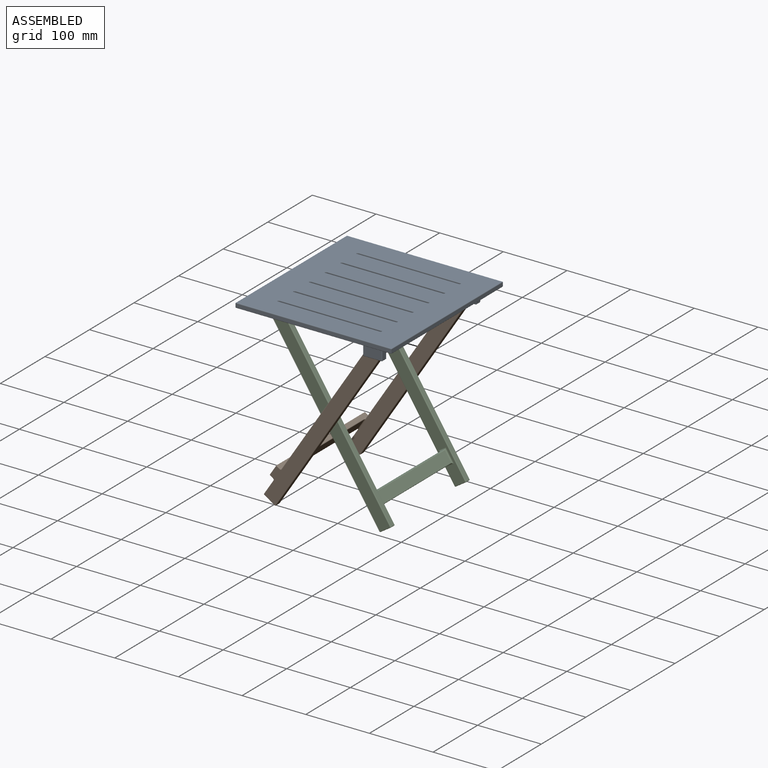
[diagram: assembled view]
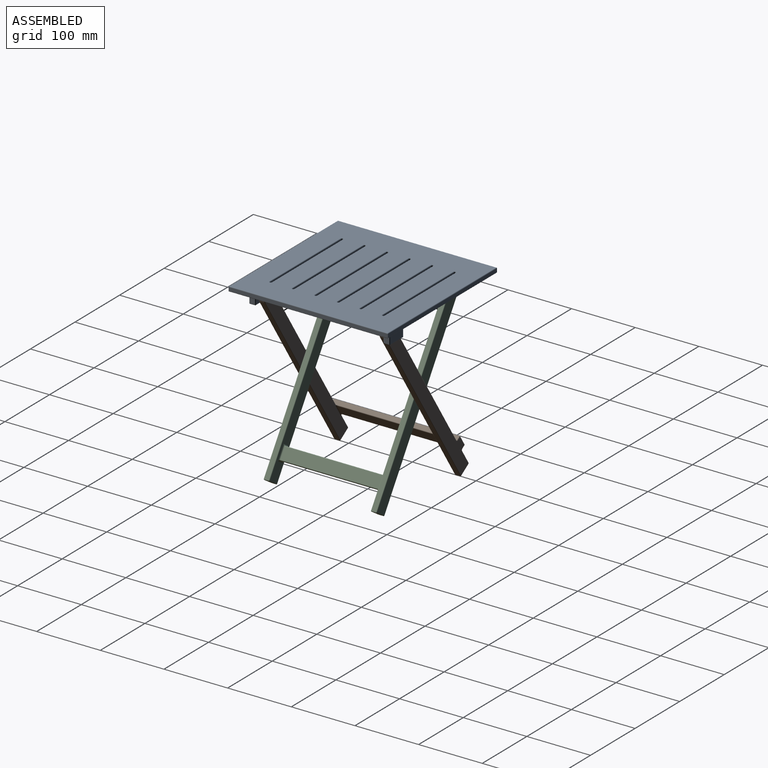
[diagram: assembled view, second angle]
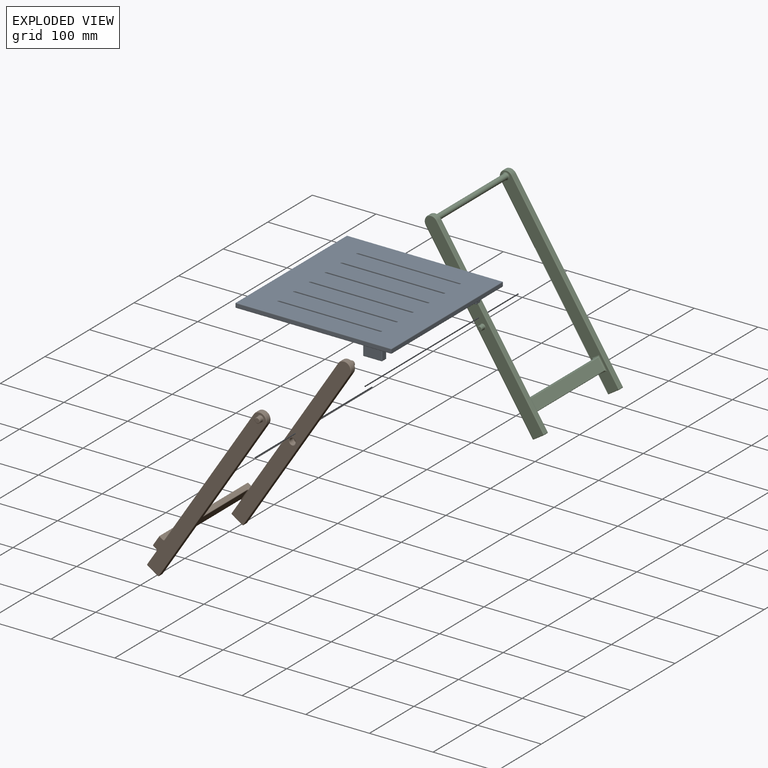
[diagram: exploded view]
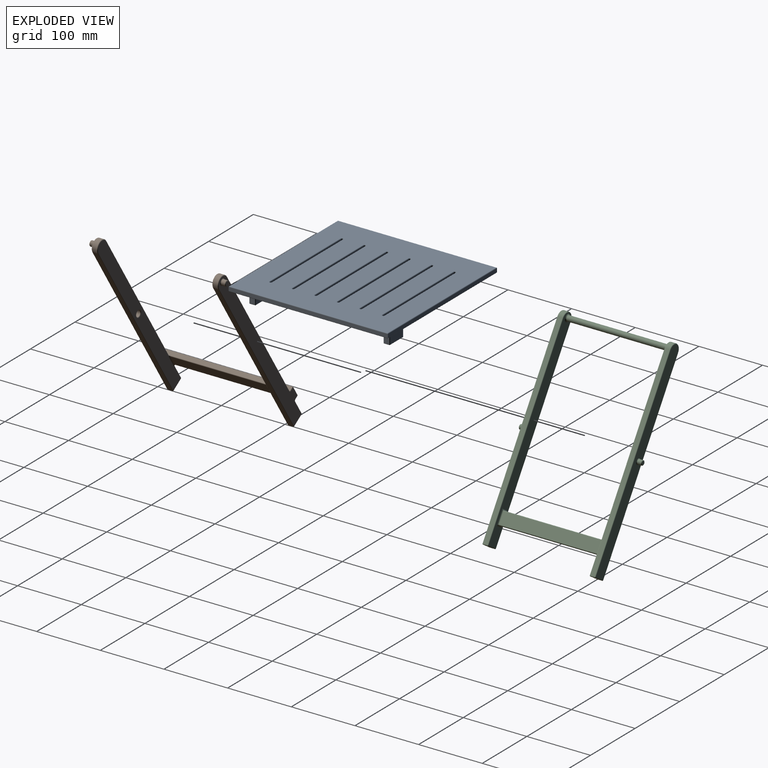
[diagram: exploded view, second angle]
ASSEMBLY  parts=3 mates=2
PART A: 215 faces, bbox 245x250x30.5 mm
  f0: plane 8x4mm, normal (1,0,0), area 32mm2, adj f93,f94,f98,f99
  f1: plane 8x1.5mm, normal (1,0,0), area 12mm2, adj f62,f68,f111,f132
  f2: plane 28x20mm, normal (0,-1,0), area 311.2mm2, adj f72,f91,f95,f99,f101,f102,f103,f105
  f3: plane 28x20mm, normal (0,1,0), area 311.2mm2, adj f69,f112,f119,f125,f128,f129,f130,f132
  f4: plane 28x20mm, normal (0,-1,0), area 311.2mm2, adj f66,f107,f111,f114,f115,f118,f121,f122
  f5: plane 248x243mm, normal (0,0,-1), area 53442.2mm2, adj f66,f67,f68,f69,f70,f71,f72,f73
  f6: plane 250x5.5mm, normal (1,0,0), area 1375mm2, adj f9,f10,f210,f211
  f7: plane 248x243mm, normal (0,0,1), area 55346.2mm2, adj f163,f164,f165,f166,f171,f172,f173,f174
  f8: plane 250x5.5mm, normal (-1,0,0), area 1375mm2, adj f9,f10,f207,f214
  f9: plane 245x5.5mm, normal (0,-1,0), area 1347.5mm2, adj f6,f8,f208,f212
  f10: plane 245x5.5mm, normal (0,1,0), area 1347.5mm2, adj f6,f8,f209,f213
  f11: cylinder r=1.5mm len=5.5mm, axis (0,0,1), area 25.9mm2, adj f12,f14,f160,f164
  f12: plane 160x5.5mm, normal (0,1,0), area 880mm2, adj f11,f13,f159,f166
  f13: cylinder r=1.5mm len=5.5mm, axis (0,0,1), area 25.9mm2, adj f12,f14,f161,f165
  f14: plane 160x5.5mm, normal (0,-1,0), area 880mm2, adj f11,f13,f162,f163
  f15: cylinder r=1.5mm len=5.5mm, axis (0,0,1), area 25.9mm2, adj f16,f18,f168,f172
  f16: plane 160x5.5mm, normal (0,1,0), area 880mm2, adj f15,f17,f167,f174
  f17: cylinder r=1.5mm len=5.5mm, axis (0,0,1), area 25.9mm2, adj f16,f18,f169,f173
  f18: plane 160x5.5mm, normal (0,-1,0), area 880mm2, adj f15,f17,f170,f171
  f19: cylinder r=1.5mm len=5.5mm, axis (0,0,1), area 25.9mm2, adj f20,f22,f176,f180
  f20: plane 160x5.5mm, normal (0,1,0), area 880mm2, adj f19,f21,f175,f182
  f21: cylinder r=1.5mm len=5.5mm, axis (0,0,1), area 25.9mm2, adj f20,f22,f177,f181
  f22: plane 160x5.5mm, normal (0,-1,0), area 880mm2, adj f19,f21,f178,f179
  f23: cylinder r=1.5mm len=5.5mm, axis (0,0,1), area 25.9mm2, adj f24,f25,f184,f190
  f24: plane 160x5.5mm, normal (0,-1,0), area 880mm2, adj f23,f26,f186,f188
  f25: plane 160x5.5mm, normal (0,1,0), area 880mm2, adj f23,f26,f183,f189
  f26: cylinder r=1.5mm len=5.5mm, axis (0,0,1), area 25.9mm2, adj f24,f25,f185,f187
  f27: cylinder r=1.5mm len=5.5mm, axis (0,0,1), area 25.9mm2, adj f28,f30,f192,f195
  f28: plane 160x5.5mm, normal (0,1,0), area 880mm2, adj f27,f29,f191,f196
  f29: cylinder r=1.5mm len=5.5mm, axis (0,0,1), area 25.9mm2, adj f28,f30,f193,f198
  f30: plane 160x5.5mm, normal (0,-1,0), area 880mm2, adj f27,f29,f194,f197
  f31: cylinder r=1.5mm len=5.5mm, axis (0,0,1), area 25.9mm2, adj f32,f34,f200,f204
  f32: plane 160x5.5mm, normal (0,1,0), area 880mm2, adj f31,f33,f199,f206
  f33: cylinder r=1.5mm len=5.5mm, axis (0,0,1), area 25.9mm2, adj f32,f34,f201,f205
  f34: plane 160x5.5mm, normal (0,-1,0), area 880mm2, adj f31,f33,f202,f203
  f35: plane 20x9mm, normal (-1,0,0), area 180mm2, adj f36,f79,f155,f158
  f36: plane 29x20mm, normal (0,1,0), area 476.1mm2, adj f35,f56,f81,f148,f153
  f37: plane 20x8mm, normal (1,0,0), area 160mm2, adj f80,f148,f149,f150
  f38: plane 28x20mm, normal (0,-1,0), area 560mm2, adj f78,f149,f154,f158
  f39: plane 28x8mm, normal (0,0,-1), area 224mm2, adj f150,f153,f154,f155
  f40: plane 28x20mm, normal (0,-1,0), area 456.1mm2, adj f57,f74,f136,f141,f145
  f41: plane 20x9mm, normal (-1,0,0), area 180mm2, adj f42,f75,f142,f145
  f42: plane 29x20mm, normal (0,1,0), area 580mm2, adj f41,f77,f135,f140
  f43: plane 20x8mm, normal (1,0,0), area 160mm2, adj f76,f135,f136,f137
  f44: plane 28x8mm, normal (0,0,-1), area 224mm2, adj f137,f140,f141,f142
  f45: plane 21x8mm, normal (-1,0,0), area 168mm2, adj f48,f73,f85,f91
  f46: plane 28x20mm, normal (0,1,0), area 311.2mm2, adj f71,f84,f85,f86,f87,f89,f92,f93
  f47: plane 8x1.5mm, normal (1,0,0), area 12mm2, adj f63,f70,f84,f105
  f48: plane 29x8mm, normal (0,0,-1), area 232mm2, adj f45,f87,f94,f95
  f49: plane 20x8mm, normal (-1,0,0), area 160mm2, adj f67,f107,f112,f113
  f50: plane 8x4mm, normal (1,0,0), area 32mm2, adj f120,f121,f125,f126
  f51: plane 28x8mm, normal (0,0,-1), area 224mm2, adj f113,f114,f119,f120
  f52: cylinder r=4.75mm len=9.5mm, axis (0,1,0), area 194mm2, adj f57,f58
  f53: plane 7.5x7.5mm, normal (0,-1,0), area 44.2mm2, adj f58
  f54: cylinder r=4.75mm len=9.5mm, axis (0,1,0), area 194mm2, adj f56,f59
  f55: plane 7.5x7.5mm, normal (0,1,0), area 44.2mm2, adj f59
  f56: torus R=5.75mm, axis (0,-1,0), area 50.5mm2, adj f36,f54
  f57: torus R=5.75mm, axis (0,-1,0), area 50.5mm2, adj f40,f52
  f58: torus R=3.75mm, axis (0,-1,0), area 43.3mm2, adj f52,f53
  f59: torus R=3.75mm, axis (0,1,0), area 43.3mm2, adj f54,f55
  f60: cylinder r=5mm len=9.88mm, axis (0,1,0), area 116.8mm2, adj f61,f62,f118,f129
  f61: plane 14x8mm, normal (0,0,1), area 112mm2, adj f60,f122,f126,f128
  f62: plane 16.1x8mm, normal (0.22,0,-0.98), area 132mm2, adj f1,f60,f115,f130
  f63: plane 16.1x8mm, normal (0.22,0,-0.98), area 132mm2, adj f47,f65,f86,f103
  f64: plane 14x8mm, normal (0,0,1), area 112mm2, adj f65,f92,f98,f101
  f65: cylinder r=5mm len=9.88mm, axis (0,1,0), area 116.8mm2, adj f63,f64,f89,f102
  f66: cylinder r=2mm len=34mm, axis (-1,0,0), area 94.8mm2, adj f4,f5,f106,f108
  f67: cylinder r=2mm len=14mm, axis (0,1,0), area 32mm2, adj f5,f49,f106,f109
  f68: cylinder r=2mm len=14mm, axis (0,-1,0), area 32mm2, adj f1,f5,f108,f131
  f69: cylinder r=2mm len=34mm, axis (1,0,0), area 94.8mm2, adj f3,f5,f109,f131
  f70: cylinder r=2mm len=14mm, axis (0,-1,0), area 32mm2, adj f5,f47,f82,f104
  f71: cylinder r=2mm len=34mm, axis (1,0,0), area 94.8mm2, adj f5,f46,f82,f83
  f72: cylinder r=2mm len=34mm, axis (-1,0,0), area 94.8mm2, adj f2,f5,f88,f104
  f73: cylinder r=2mm len=14mm, axis (0,1,0), area 32mm2, adj f5,f45,f83,f88
  f74: cylinder r=2mm len=34mm, axis (-1,0,0), area 94.8mm2, adj f5,f40,f134,f144
  f75: cylinder r=2mm len=14mm, axis (0,1,0), area 34mm2, adj f5,f41,f77,f144
  f76: cylinder r=2mm len=14mm, axis (0,-1,0), area 32mm2, adj f5,f43,f133,f134
  f77: cylinder r=2mm len=34mm, axis (1,0,0), area 96.8mm2, adj f5,f42,f75,f133
  f78: cylinder r=2mm len=34mm, axis (-1,0,0), area 94.8mm2, adj f5,f38,f147,f157
  f79: cylinder r=2mm len=14mm, axis (0,1,0), area 34mm2, adj f5,f35,f81,f157
  f80: cylinder r=2mm len=14mm, axis (0,-1,0), area 32mm2, adj f5,f37,f146,f147
  f81: cylinder r=2mm len=34mm, axis (1,0,0), area 96.8mm2, adj f5,f36,f79,f146
  f82: bspline ~3x3mm, area 3.6mm2, adj f70,f71,f84
  f83: bspline ~3x3mm, area 3.6mm2, adj f71,f73,f85
  f84: cylinder r=1mm len=1.5mm, axis (0,0,1), area 1.9mm2, adj f46,f47,f82,f86
  f85: cylinder r=1mm len=21mm, axis (0,0,-1), area 32.4mm2, adj f45,f46,f83,f87
  f86: cylinder r=1mm len=16.32mm, axis (0.98,0,0.22), area 25.5mm2, adj f46,f63,f84,f89
  f87: cylinder r=1mm len=29mm, axis (-1,0,0), area 45mm2, adj f46,f48,f85,f90
  f88: bspline ~3x3mm, area 3.6mm2, adj f72,f73,f91
  f89: torus R=6mm, axis (0,-1,0), area 24.6mm2, adj f46,f65,f86,f92
  f90: sphere r=1mm, area 1.6mm2, adj f87,f93,f94
  f91: cylinder r=1mm len=21mm, axis (0,0,1), area 32.4mm2, adj f2,f45,f88,f95
  f92: cylinder r=1mm len=14mm, axis (-1,0,0), area 22mm2, adj f46,f64,f89,f96
  f93: cylinder r=1mm len=4mm, axis (0,0,1), area 6.3mm2, adj f0,f46,f90,f96
  f94: cylinder r=1mm len=8mm, axis (0,1,0), area 12.6mm2, adj f0,f48,f90,f97
  f95: cylinder r=1mm len=29mm, axis (1,0,0), area 45mm2, adj f2,f48,f91,f97
  f96: sphere r=1mm, area 1.6mm2, adj f92,f93,f98
  f97: sphere r=1mm, area 1.6mm2, adj f94,f95,f99
  f98: cylinder r=1mm len=8mm, axis (0,1,0), area 12.6mm2, adj f0,f64,f96,f100
  f99: cylinder r=1mm len=4mm, axis (0,0,-1), area 6.3mm2, adj f0,f2,f97,f100
  f100: sphere r=1mm, area 1.6mm2, adj f98,f99,f101
  f101: cylinder r=1mm len=14mm, axis (-1,0,0), area 22mm2, adj f2,f64,f100,f102
  f102: torus R=6mm, axis (0,-1,0), area 24.6mm2, adj f2,f65,f101,f103
  f103: cylinder r=1mm len=16.32mm, axis (0.98,0,0.22), area 25.5mm2, adj f2,f63,f102,f105
  f104: bspline ~3x3mm, area 3.6mm2, adj f70,f72,f105
  f105: cylinder r=1mm len=1.5mm, axis (0,0,-1), area 1.9mm2, adj f2,f47,f103,f104
  f106: bspline ~3x3mm, area 3.6mm2, adj f66,f67,f107
  f107: cylinder r=1mm len=20mm, axis (0,0,-1), area 31.4mm2, adj f4,f49,f106,f110
  f108: bspline ~3x3mm, area 3.6mm2, adj f66,f68,f111
  f109: bspline ~3x3mm, area 3.6mm2, adj f67,f69,f112
  f110: sphere r=1mm, area 1.6mm2, adj f107,f113,f114
  f111: cylinder r=1mm len=1.5mm, axis (0,0,1), area 1.9mm2, adj f1,f4,f108,f115
  f112: cylinder r=1mm len=20mm, axis (0,0,1), area 31.4mm2, adj f3,f49,f109,f116
  f113: cylinder r=1mm len=8mm, axis (0,-1,0), area 12.6mm2, adj f49,f51,f110,f116
  f114: cylinder r=1mm len=28mm, axis (1,0,0), area 44mm2, adj f4,f51,f110,f117
  f115: cylinder r=1mm len=16.32mm, axis (0.98,0,0.22), area 25.5mm2, adj f4,f62,f111,f118
  f116: sphere r=1mm, area 1.6mm2, adj f112,f113,f119
  f117: sphere r=1mm, area 1.6mm2, adj f114,f120,f121
  f118: torus R=6mm, axis (0,-1,0), area 24.6mm2, adj f4,f60,f115,f122
  f119: cylinder r=1mm len=28mm, axis (-1,0,0), area 44mm2, adj f3,f51,f116,f123
  f120: cylinder r=1mm len=8mm, axis (0,1,0), area 12.6mm2, adj f50,f51,f117,f123
  f121: cylinder r=1mm len=4mm, axis (0,0,1), area 6.3mm2, adj f4,f50,f117,f124
  f122: cylinder r=1mm len=14mm, axis (-1,0,0), area 22mm2, adj f4,f61,f118,f124
  f123: sphere r=1mm, area 1.6mm2, adj f119,f120,f125
  f124: sphere r=1mm, area 1.6mm2, adj f121,f122,f126
  f125: cylinder r=1mm len=4mm, axis (0,0,-1), area 6.3mm2, adj f3,f50,f123,f127
  f126: cylinder r=1mm len=8mm, axis (0,-1,0), area 12.6mm2, adj f50,f61,f124,f127
  f127: sphere r=1mm, area 1.6mm2, adj f125,f126,f128
  f128: cylinder r=1mm len=14mm, axis (1,0,0), area 22mm2, adj f3,f61,f127,f129
  f129: torus R=6mm, axis (0,-1,0), area 24.6mm2, adj f3,f60,f128,f130
  f130: cylinder r=1mm len=16.32mm, axis (-0.98,0,-0.22), area 25.5mm2, adj f3,f62,f129,f132
  f131: bspline ~3x3mm, area 3.6mm2, adj f68,f69,f132
  f132: cylinder r=1mm len=1.5mm, axis (0,0,-1), area 1.9mm2, adj f1,f3,f130,f131
  f133: bspline ~3x3mm, area 3.6mm2, adj f76,f77,f135
  f134: bspline ~3x3mm, area 3.6mm2, adj f74,f76,f136
  f135: cylinder r=1mm len=20mm, axis (0,0,1), area 31.4mm2, adj f42,f43,f133,f138
  f136: cylinder r=1mm len=20mm, axis (0,0,-1), area 31.4mm2, adj f40,f43,f134,f139
  f137: cylinder r=1mm len=8mm, axis (0,1,0), area 12.6mm2, adj f43,f44,f138,f139
  f138: sphere r=1mm, area 1.6mm2, adj f135,f137,f140
  f139: sphere r=1mm, area 1.6mm2, adj f136,f137,f141
  f140: cylinder r=1mm len=29mm, axis (-1,0,0), area 45mm2, adj f42,f44,f138,f142
  f141: cylinder r=1mm len=28mm, axis (1,0,0), area 44mm2, adj f40,f44,f139,f143
  f142: cylinder r=1mm len=9mm, axis (0,-1,0), area 13.6mm2, adj f41,f44,f140,f143
  f143: sphere r=1mm, area 1.6mm2, adj f141,f142,f145
  f144: bspline ~3x3mm, area 3.6mm2, adj f74,f75,f145
  f145: cylinder r=1mm len=20mm, axis (0,0,1), area 31.4mm2, adj f40,f41,f143,f144
  f146: bspline ~3x3mm, area 3.6mm2, adj f80,f81,f148
  f147: bspline ~3x3mm, area 3.6mm2, adj f78,f80,f149
  f148: cylinder r=1mm len=20mm, axis (0,0,-1), area 31.4mm2, adj f36,f37,f146,f151
  f149: cylinder r=1mm len=20mm, axis (0,0,1), area 31.4mm2, adj f37,f38,f147,f152
  f150: cylinder r=1mm len=8mm, axis (0,1,0), area 12.6mm2, adj f37,f39,f151,f152
  f151: sphere r=1mm, area 1.6mm2, adj f148,f150,f153
  f152: sphere r=1mm, area 1.6mm2, adj f149,f150,f154
  f153: cylinder r=1mm len=29mm, axis (-1,0,0), area 45mm2, adj f36,f39,f151,f155
  f154: cylinder r=1mm len=28mm, axis (1,0,0), area 44mm2, adj f38,f39,f152,f156
  f155: cylinder r=1mm len=9mm, axis (0,-1,0), area 13.6mm2, adj f35,f39,f153,f156
  f156: sphere r=1mm, area 1.6mm2, adj f154,f155,f158
  f157: bspline ~3x3mm, area 3.6mm2, adj f78,f79,f158
  f158: cylinder r=1mm len=20mm, axis (0,0,-1), area 31.4mm2, adj f35,f38,f156,f157
  f159: cylinder r=1mm len=160mm, axis (-1,0,0), area 251.3mm2, adj f5,f12,f160,f161
  f160: torus R=2.5mm, axis (0,0,-1), area 9.2mm2, adj f5,f11,f159,f162
  f161: torus R=2.5mm, axis (0,0,-1), area 9.2mm2, adj f5,f13,f159,f162
  f162: cylinder r=1mm len=160mm, axis (1,0,0), area 251.3mm2, adj f5,f14,f160,f161
  f163: cylinder r=1mm len=160mm, axis (-1,0,0), area 251.3mm2, adj f7,f14,f164,f165
  f164: torus R=2.5mm, axis (0,0,-1), area 9.2mm2, adj f7,f11,f163,f166
  f165: torus R=2.5mm, axis (0,0,-1), area 9.2mm2, adj f7,f13,f163,f166
  f166: cylinder r=1mm len=160mm, axis (1,0,0), area 251.3mm2, adj f7,f12,f164,f165
  f167: cylinder r=1mm len=160mm, axis (-1,0,0), area 251.3mm2, adj f5,f16,f168,f169
  f168: torus R=2.5mm, axis (0,0,-1), area 9.2mm2, adj f5,f15,f167,f170
  f169: torus R=2.5mm, axis (0,0,-1), area 9.2mm2, adj f5,f17,f167,f170
  f170: cylinder r=1mm len=160mm, axis (1,0,0), area 251.3mm2, adj f5,f18,f168,f169
  f171: cylinder r=1mm len=160mm, axis (-1,0,0), area 251.3mm2, adj f7,f18,f172,f173
  f172: torus R=2.5mm, axis (0,0,-1), area 9.2mm2, adj f7,f15,f171,f174
  f173: torus R=2.5mm, axis (0,0,-1), area 9.2mm2, adj f7,f17,f171,f174
  f174: cylinder r=1mm len=160mm, axis (1,0,0), area 251.3mm2, adj f7,f16,f172,f173
  f175: cylinder r=1mm len=160mm, axis (-1,0,0), area 251.3mm2, adj f5,f20,f176,f177
  f176: torus R=2.5mm, axis (0,0,-1), area 9.2mm2, adj f5,f19,f175,f178
  f177: torus R=2.5mm, axis (0,0,-1), area 9.2mm2, adj f5,f21,f175,f178
  f178: cylinder r=1mm len=160mm, axis (1,0,0), area 251.3mm2, adj f5,f22,f176,f177
  f179: cylinder r=1mm len=160mm, axis (-1,0,0), area 251.3mm2, adj f7,f22,f180,f181
  f180: torus R=2.5mm, axis (0,0,-1), area 9.2mm2, adj f7,f19,f179,f182
  f181: torus R=2.5mm, axis (0,0,-1), area 9.2mm2, adj f7,f21,f179,f182
  f182: cylinder r=1mm len=160mm, axis (1,0,0), area 251.3mm2, adj f7,f20,f180,f181
  f183: cylinder r=1mm len=160mm, axis (-1,0,0), area 251.3mm2, adj f5,f25,f184,f185
  f184: torus R=2.5mm, axis (0,0,-1), area 9.2mm2, adj f5,f23,f183,f186
  f185: torus R=2.5mm, axis (0,0,-1), area 9.2mm2, adj f5,f26,f183,f186
  f186: cylinder r=1mm len=160mm, axis (1,0,0), area 251.3mm2, adj f5,f24,f184,f185
  f187: torus R=2.5mm, axis (0,0,-1), area 9.2mm2, adj f7,f26,f188,f189
  f188: cylinder r=1mm len=160mm, axis (-1,0,0), area 251.3mm2, adj f7,f24,f187,f190
  f189: cylinder r=1mm len=160mm, axis (1,0,0), area 251.3mm2, adj f7,f25,f187,f190
  f190: torus R=2.5mm, axis (0,0,-1), area 9.2mm2, adj f7,f23,f188,f189
  f191: cylinder r=1mm len=160mm, axis (-1,0,0), area 251.3mm2, adj f5,f28,f192,f193
  f192: torus R=2.5mm, axis (0,0,-1), area 9.2mm2, adj f5,f27,f191,f194
  f193: torus R=2.5mm, axis (0,0,-1), area 9.2mm2, adj f5,f29,f191,f194
  f194: cylinder r=1mm len=160mm, axis (1,0,0), area 251.3mm2, adj f5,f30,f192,f193
  f195: torus R=2.5mm, axis (0,0,-1), area 9.2mm2, adj f7,f27,f196,f197
  f196: cylinder r=1mm len=160mm, axis (1,0,0), area 251.3mm2, adj f7,f28,f195,f198
  f197: cylinder r=1mm len=160mm, axis (-1,0,0), area 251.3mm2, adj f7,f30,f195,f198
  f198: torus R=2.5mm, axis (0,0,-1), area 9.2mm2, adj f7,f29,f196,f197
  f199: cylinder r=1mm len=160mm, axis (-1,0,0), area 251.3mm2, adj f5,f32,f200,f201
  f200: torus R=2.5mm, axis (0,0,-1), area 9.2mm2, adj f5,f31,f199,f202
  f201: torus R=2.5mm, axis (0,0,-1), area 9.2mm2, adj f5,f33,f199,f202
  f202: cylinder r=1mm len=160mm, axis (1,0,0), area 251.3mm2, adj f5,f34,f200,f201
  f203: cylinder r=1mm len=160mm, axis (-1,0,0), area 251.3mm2, adj f7,f34,f204,f205
  f204: torus R=2.5mm, axis (0,0,-1), area 9.2mm2, adj f7,f31,f203,f206
  f205: torus R=2.5mm, axis (0,0,-1), area 9.2mm2, adj f7,f33,f203,f206
  f206: cylinder r=1mm len=160mm, axis (1,0,0), area 251.3mm2, adj f7,f32,f204,f205
  f207: cylinder r=1mm len=250mm, axis (0,-1,0), area 391.6mm2, adj f7,f8,f208,f209
  f208: cylinder r=1mm len=245mm, axis (1,0,0), area 383.7mm2, adj f7,f9,f207,f210
  f209: cylinder r=1mm len=245mm, axis (-1,0,0), area 383.7mm2, adj f7,f10,f207,f210
  f210: cylinder r=1mm len=250mm, axis (0,1,0), area 391.6mm2, adj f6,f7,f208,f209
  f211: cylinder r=1mm len=250mm, axis (0,-1,0), area 391.6mm2, adj f5,f6,f212,f213
  f212: cylinder r=1mm len=245mm, axis (-1,0,0), area 383.7mm2, adj f5,f9,f211,f214
  f213: cylinder r=1mm len=245mm, axis (1,0,0), area 383.7mm2, adj f5,f10,f211,f214
  f214: cylinder r=1mm len=250mm, axis (0,1,0), area 391.6mm2, adj f5,f8,f212,f213
PART B: 106 faces, bbox 31.4x214x320.9 mm
  f0: plane 318x28.5mm, normal (0,1,0), area 6387.4mm2, adj f26,f48,f51,f52,f56,f57,f66,f67
  f1: plane 318x20.08mm, normal (0,1,0), area 6192.2mm2, adj f30,f42,f81,f82,f83,f84,f89,f90
  f2: plane 318x20.08mm, normal (0,-1,0), area 6192.2mm2, adj f31,f61,f76,f77,f78,f79,f86,f87
  f3: plane 257x7.5mm, normal (-1,0,0), area 1927.5mm2, adj f21,f34,f43,f82
  f4: plane 257x7.5mm, normal (-1,0,0), area 1927.5mm2, adj f20,f36,f48,f77
  f5: plane 308x7.5mm, normal (1,0,0), area 2310mm2, adj f21,f38,f39,f84
  f6: plane 308x7.5mm, normal (1,0,0), area 2310mm2, adj f20,f55,f56,f79
  f7: plane 176x18mm, normal (1,0,0), area 3168mm2, adj f74,f75,f95,f102
  f8: plane 197x6.5mm, normal (0,0,-1), area 1262.4mm2, adj f35,f37,f60,f68,f72,f74,f98,f105
  f9: plane 197x6.5mm, normal (0,0,1), area 1262.4mm2, adj f34,f36,f49,f57,f58,f75,f92,f99
  f10: plane 318x28.5mm, normal (0,-1,0), area 6387.4mm2, adj f27,f38,f40,f43,f44,f46,f49,f50
  f11: plane 197x18mm, normal (-1,0,0), area 3546mm2, adj f58,f59,f67,f68
  f12: plane 20x7.5mm, normal (0,0,-1), area 150mm2, adj f39,f42,f44,f45
  f13: plane 27x7.5mm, normal (-1,0,0), area 202.5mm2, adj f35,f45,f50,f90
  f14: plane 20x7.5mm, normal (0,0,-1), area 150mm2, adj f55,f61,f65,f66
  f15: plane 27x7.5mm, normal (-1,0,0), area 202.5mm2, adj f37,f65,f71,f87
  f16: cylinder r=4.75mm len=9.5mm, axis (0,1,0), area 194mm2, adj f31,f32
  f17: plane 7.5x7.5mm, normal (0,-1,0), area 44.2mm2, adj f32
  f18: cylinder r=4.75mm len=9.5mm, axis (0,1,0), area 194mm2, adj f30,f33
  f19: plane 7.5x7.5mm, normal (0,1,0), area 44.2mm2, adj f33
  f20: cylinder r=11mm len=22mm, axis (0,-1,0), area 259.2mm2, adj f4,f6,f51,f78
  f21: cylinder r=11mm len=22mm, axis (0,-1,0), area 259.2mm2, adj f3,f5,f40,f83
  f22: cylinder r=4.25mm len=8.5mm, axis (0,1,0), area 146.9mm2, adj f27,f29
  f23: plane 6.5x6.5mm, normal (0,-1,0), area 33.2mm2, adj f29
  f24: cylinder r=4.25mm len=8.5mm, axis (0,1,0), area 146.9mm2, adj f26,f28
  f25: plane 6.5x6.5mm, normal (0,1,0), area 33.2mm2, adj f28
  f26: torus R=5.25mm, axis (0,1,0), area 45.5mm2, adj f0,f24
  f27: torus R=5.25mm, axis (0,1,0), area 45.5mm2, adj f10,f22
  f28: torus R=3.25mm, axis (0,1,0), area 38.4mm2, adj f24,f25
  f29: torus R=3.25mm, axis (0,-1,0), area 38.4mm2, adj f22,f23
  f30: torus R=5.75mm, axis (0,-1,0), area 50.5mm2, adj f1,f18
  f31: torus R=5.75mm, axis (0,-1,0), area 50.5mm2, adj f2,f16
  f32: torus R=3.75mm, axis (0,-1,0), area 43.3mm2, adj f16,f17
  f33: torus R=3.75mm, axis (0,1,0), area 43.3mm2, adj f18,f19
  f34: cylinder r=2mm len=7.5mm, axis (0,-1,0), area 23.6mm2, adj f3,f9,f46,f92
  f35: cylinder r=2mm len=7.5mm, axis (0,1,0), area 23.6mm2, adj f8,f13,f54,f98
  f36: cylinder r=2mm len=7.5mm, axis (0,-1,0), area 23.6mm2, adj f4,f9,f52,f99
  f37: cylinder r=2mm len=7.5mm, axis (0,1,0), area 23.6mm2, adj f8,f15,f73,f105
  f38: cylinder r=1mm len=308mm, axis (0,0,-1), area 483.8mm2, adj f5,f10,f40,f41
  f39: cylinder r=1mm len=7.5mm, axis (0,-1,0), area 11.8mm2, adj f5,f12,f41,f85
  f40: torus R=10mm, axis (0,1,0), area 52.5mm2, adj f10,f21,f38,f43
  f41: sphere r=1mm, area 1.6mm2, adj f38,f39,f44
  f42: cylinder r=1mm len=20mm, axis (-1,0,0), area 31.4mm2, adj f1,f12,f85,f91
  f43: cylinder r=1mm len=257mm, axis (0,0,1), area 403.7mm2, adj f3,f10,f40,f46
  f44: cylinder r=1mm len=20mm, axis (-1,0,0), area 31.4mm2, adj f10,f12,f41,f47
  f45: cylinder r=1mm len=7.5mm, axis (0,1,0), area 11.8mm2, adj f12,f13,f47,f91
  f46: torus R=3mm, axis (0,1,0), area 5.8mm2, adj f10,f34,f43,f49
  f47: sphere r=1mm, area 1.6mm2, adj f44,f45,f50
  f48: cylinder r=1mm len=257mm, axis (0,0,-1), area 403.7mm2, adj f0,f4,f51,f52
  f49: cylinder r=1mm len=5.5mm, axis (-1,0,0), area 8.6mm2, adj f9,f10,f46,f53
  f50: cylinder r=1mm len=27mm, axis (0,0,1), area 42.4mm2, adj f10,f13,f47,f54
  f51: torus R=10mm, axis (0,1,0), area 52.5mm2, adj f0,f20,f48,f56
  f52: torus R=3mm, axis (0,1,0), area 5.8mm2, adj f0,f36,f48,f57
  f53: sphere r=1mm, area 1.6mm2, adj f49,f58,f59
  f54: torus R=3mm, axis (0,1,0), area 5.8mm2, adj f10,f35,f50,f60
  f55: cylinder r=1mm len=7.5mm, axis (0,-1,0), area 11.8mm2, adj f6,f14,f62,f80
  f56: cylinder r=1mm len=308mm, axis (0,0,1), area 483.8mm2, adj f0,f6,f51,f62
  f57: cylinder r=1mm len=5.5mm, axis (1,0,0), area 8.6mm2, adj f0,f9,f52,f63
  f58: cylinder r=1mm len=197mm, axis (0,1,0), area 309.4mm2, adj f9,f11,f53,f63
  f59: cylinder r=1mm len=18mm, axis (0,0,1), area 28.3mm2, adj f10,f11,f53,f64
  f60: cylinder r=1mm len=5.5mm, axis (1,0,0), area 8.6mm2, adj f8,f10,f54,f64
  f61: cylinder r=1mm len=20mm, axis (-1,0,0), area 31.4mm2, adj f2,f14,f80,f88
  f62: sphere r=1mm, area 1.6mm2, adj f55,f56,f66
  f63: sphere r=1mm, area 1.6mm2, adj f57,f58,f67
  f64: sphere r=1mm, area 1.6mm2, adj f59,f60,f68
  f65: cylinder r=1mm len=7.5mm, axis (0,1,0), area 11.8mm2, adj f14,f15,f69,f88
  f66: cylinder r=1mm len=20mm, axis (-1,0,0), area 31.4mm2, adj f0,f14,f62,f69
  f67: cylinder r=1mm len=18mm, axis (0,0,-1), area 28.3mm2, adj f0,f11,f63,f70
  f68: cylinder r=1mm len=197mm, axis (0,-1,0), area 309.4mm2, adj f8,f11,f64,f70
  f69: sphere r=1mm, area 1.6mm2, adj f65,f66,f71
  f70: sphere r=1mm, area 1.6mm2, adj f67,f68,f72
  f71: cylinder r=1mm len=27mm, axis (0,0,-1), area 42.4mm2, adj f0,f15,f69,f73
  f72: cylinder r=1mm len=5.5mm, axis (-1,0,0), area 8.6mm2, adj f0,f8,f70,f73
  f73: torus R=3mm, axis (0,1,0), area 5.8mm2, adj f0,f37,f71,f72
  f74: cylinder r=1mm len=177.53mm, axis (0,1,0), area 276.8mm2, adj f7,f8,f96,f97,f103,f104
  f75: cylinder r=1mm len=177.53mm, axis (0,-1,0), area 276.8mm2, adj f7,f9,f93,f94,f100,f101
  f76: torus R=3mm, axis (0,-1,0), area 0.2mm2, adj f2,f77,f100
  f77: cylinder r=1mm len=257mm, axis (0,0,-1), area 403.7mm2, adj f2,f4,f76,f78,f99
  f78: torus R=10mm, axis (0,-1,0), area 52.5mm2, adj f2,f20,f77,f79
  f79: cylinder r=1mm len=308mm, axis (0,0,1), area 483.8mm2, adj f2,f6,f78,f80
  f80: sphere r=1mm, area 1.6mm2, adj f55,f61,f79
  f81: torus R=3mm, axis (0,-1,0), area 0.2mm2, adj f1,f82,f93
  f82: cylinder r=1mm len=257mm, axis (0,0,1), area 403.7mm2, adj f1,f3,f81,f83,f92
  f83: torus R=10mm, axis (0,-1,0), area 52.5mm2, adj f1,f21,f82,f84
  f84: cylinder r=1mm len=308mm, axis (0,0,-1), area 483.8mm2, adj f1,f5,f83,f85
  f85: sphere r=1mm, area 1.6mm2, adj f39,f42,f84
  f86: torus R=3mm, axis (0,-1,0), area 0.2mm2, adj f2,f87,f104
  f87: cylinder r=1mm len=27mm, axis (0,0,-1), area 42.4mm2, adj f2,f15,f86,f88,f105
  f88: sphere r=1mm, area 1.6mm2, adj f61,f65,f87
  f89: torus R=3mm, axis (0,-1,0), area 0.2mm2, adj f1,f90,f97
  f90: cylinder r=1mm len=27mm, axis (0,0,1), area 42.4mm2, adj f1,f13,f89,f91,f98
  f91: sphere r=1mm, area 1.6mm2, adj f42,f45,f90
  f92: torus R=3mm, axis (0,0,1), area 4.6mm2, adj f9,f34,f82,f93
  f93: bspline ~2.35x2.33mm, area 1.7mm2, adj f75,f81,f92,f94
  f94: torus R=3mm, axis (0,-1,0), area 4.8mm2, adj f1,f75,f93,f95
  f95: cylinder r=2mm len=18mm, axis (0,0,1), area 56.5mm2, adj f1,f7,f94,f96
  f96: torus R=3mm, axis (0,-1,0), area 4.8mm2, adj f1,f74,f95,f97
  f97: bspline ~2.35x2.32mm, area 1.7mm2, adj f74,f89,f96,f98
  f98: torus R=3mm, axis (0,0,1), area 4.6mm2, adj f8,f35,f90,f97
  f99: torus R=3mm, axis (0,0,1), area 4.6mm2, adj f9,f36,f77,f100
  f100: bspline ~2.35x2.32mm, area 1.7mm2, adj f75,f76,f99,f101
  f101: torus R=3mm, axis (0,-1,0), area 4.8mm2, adj f2,f75,f100,f102
  f102: cylinder r=2mm len=18mm, axis (0,0,-1), area 56.5mm2, adj f2,f7,f101,f103
  f103: torus R=3mm, axis (0,-1,0), area 4.8mm2, adj f2,f74,f102,f104
  f104: bspline ~2.35x2.33mm, area 1.7mm2, adj f74,f86,f103,f105
  f105: torus R=3mm, axis (0,0,1), area 4.6mm2, adj f8,f37,f87,f104
PART C: 75 faces, bbox 22.7x193x320.9 mm
  f0: plane 318x19mm, normal (0,-1,0), area 5544.5mm2, adj f25,f26,f27,f28,f33,f57,f59,f60
  f1: plane 308.5x7.5mm, normal (-1,0,0), area 2313.7mm2, adj f4,f49,f54,f57
  f2: plane 19x7.5mm, normal (0,0,-1), area 142.5mm2, adj f53,f54,f58,f59
  f3: plane 308.5x7.5mm, normal (1,0,0), area 2313.7mm2, adj f4,f52,f58,f62
  f4: cylinder r=10.5mm len=21mm, axis (0,1,0), area 247.4mm2, adj f1,f3,f50,f60
  f5: plane 318x19mm, normal (0,1,0), area 5932.4mm2, adj f21,f49,f50,f52,f53
  f6: plane 155x8mm, normal (0,0,-1), area 1240mm2, adj f25,f29,f64,f67
  f7: plane 155x18mm, normal (1,0,0), area 2790mm2, adj f26,f30,f67,f70
  f8: plane 155x8mm, normal (0,0,1), area 1240mm2, adj f28,f32,f70,f73
  f9: plane 155x18mm, normal (-1,0,0), area 2790mm2, adj f27,f31,f64,f73
  f10: cylinder r=4.25mm len=155mm, axis (0,1,0), area 4139mm2, adj f33,f34
  f11: plane 318x19mm, normal (0,1,0), area 5544.5mm2, adj f29,f30,f31,f32,f34,f43,f45,f47
  f12: plane 308.5x7.5mm, normal (-1,0,0), area 2313.7mm2, adj f15,f35,f40,f45
  f13: plane 19x7.5mm, normal (0,0,-1), area 142.5mm2, adj f38,f40,f43,f44
  f14: plane 308.5x7.5mm, normal (1,0,0), area 2313.7mm2, adj f15,f39,f44,f48
  f15: cylinder r=10.5mm len=21mm, axis (0,1,0), area 247.4mm2, adj f12,f14,f36,f47
  f16: plane 318x19mm, normal (0,-1,0), area 5932.4mm2, adj f22,f35,f36,f38,f39
  f17: cylinder r=3.75mm len=7.5mm, axis (0,1,0), area 129.6mm2, adj f22,f24
  f18: plane 5.5x5.5mm, normal (0,-1,0), area 23.8mm2, adj f24
  f19: cylinder r=3.75mm len=7.5mm, axis (0,1,0), area 129.6mm2, adj f21,f23
  f20: plane 5.5x5.5mm, normal (0,1,0), area 23.8mm2, adj f23
  f21: torus R=4.75mm, axis (0,-1,0), area 40.6mm2, adj f5,f19
  f22: torus R=4.75mm, axis (0,-1,0), area 40.6mm2, adj f16,f17
  f23: torus R=2.75mm, axis (0,-1,0), area 33.4mm2, adj f19,f20
  f24: torus R=2.75mm, axis (0,-1,0), area 33.4mm2, adj f17,f18
  f25: cylinder r=2mm len=14mm, axis (1,0,0), area 32mm2, adj f0,f6,f63,f66
  f26: cylinder r=2mm len=24mm, axis (0,0,1), area 63.4mm2, adj f0,f7,f66,f69
  f27: cylinder r=2mm len=24mm, axis (0,0,-1), area 63.4mm2, adj f0,f9,f63,f72
  f28: cylinder r=2mm len=14mm, axis (-1,0,0), area 32mm2, adj f0,f8,f69,f72
  f29: cylinder r=2mm len=14mm, axis (-1,0,0), area 32mm2, adj f6,f11,f65,f68
  f30: cylinder r=2mm len=24mm, axis (0,0,-1), area 63.4mm2, adj f7,f11,f68,f71
  f31: cylinder r=2mm len=24mm, axis (0,0,1), area 63.4mm2, adj f9,f11,f65,f74
  f32: cylinder r=2mm len=14mm, axis (1,0,0), area 32mm2, adj f8,f11,f71,f74
  f33: torus R=6.25mm, axis (0,-1,0), area 98.2mm2, adj f0,f10
  f34: torus R=6.25mm, axis (0,-1,0), area 98.2mm2, adj f10,f11
  f35: cylinder r=1mm len=308.5mm, axis (0,0,1), area 484.6mm2, adj f12,f16,f36,f37
  f36: torus R=9.5mm, axis (0,-1,0), area 50mm2, adj f15,f16,f35,f39
  f37: sphere r=1mm, area 1.6mm2, adj f35,f38,f40
  f38: cylinder r=1mm len=19mm, axis (-1,0,0), area 29.8mm2, adj f13,f16,f37,f41
  f39: cylinder r=1mm len=308.5mm, axis (0,0,-1), area 484.6mm2, adj f14,f16,f36,f41
  f40: cylinder r=1mm len=7.5mm, axis (0,-1,0), area 11.8mm2, adj f12,f13,f37,f42
  f41: sphere r=1mm, area 1.6mm2, adj f38,f39,f44
  f42: sphere r=1mm, area 1.6mm2, adj f40,f43,f45
  f43: cylinder r=1mm len=19mm, axis (1,0,0), area 29.8mm2, adj f11,f13,f42,f46
  f44: cylinder r=1mm len=7.5mm, axis (0,1,0), area 11.8mm2, adj f13,f14,f41,f46
  f45: cylinder r=1mm len=308.5mm, axis (0,0,-1), area 484.6mm2, adj f11,f12,f42,f47
  f46: sphere r=1mm, area 1.6mm2, adj f43,f44,f48
  f47: torus R=9.5mm, axis (0,-1,0), area 50mm2, adj f11,f15,f45,f48
  f48: cylinder r=1mm len=308.5mm, axis (0,0,1), area 484.6mm2, adj f11,f14,f46,f47
  f49: cylinder r=1mm len=308.5mm, axis (0,0,-1), area 484.6mm2, adj f1,f5,f50,f51
  f50: torus R=9.5mm, axis (0,-1,0), area 50mm2, adj f4,f5,f49,f52
  f51: sphere r=1mm, area 1.6mm2, adj f49,f53,f54
  f52: cylinder r=1mm len=308.5mm, axis (0,0,1), area 484.6mm2, adj f3,f5,f50,f55
  f53: cylinder r=1mm len=19mm, axis (1,0,0), area 29.8mm2, adj f2,f5,f51,f55
  f54: cylinder r=1mm len=7.5mm, axis (0,1,0), area 11.8mm2, adj f1,f2,f51,f56
  f55: sphere r=1mm, area 1.6mm2, adj f52,f53,f58
  f56: sphere r=1mm, area 1.6mm2, adj f54,f57,f59
  f57: cylinder r=1mm len=308.5mm, axis (0,0,1), area 484.6mm2, adj f0,f1,f56,f60
  f58: cylinder r=1mm len=7.5mm, axis (0,-1,0), area 11.8mm2, adj f2,f3,f55,f61
  f59: cylinder r=1mm len=19mm, axis (-1,0,0), area 29.8mm2, adj f0,f2,f56,f61
  f60: torus R=9.5mm, axis (0,-1,0), area 50mm2, adj f0,f4,f57,f62
  f61: sphere r=1mm, area 1.6mm2, adj f58,f59,f62
  f62: cylinder r=1mm len=308.5mm, axis (0,0,-1), area 484.6mm2, adj f0,f3,f60,f61
  f63: bspline ~3x3mm, area 3.6mm2, adj f25,f27,f64
  f64: cylinder r=1mm len=155mm, axis (0,1,0), area 243.5mm2, adj f6,f9,f63,f65
  f65: bspline ~3x3mm, area 3.6mm2, adj f29,f31,f64
  f66: bspline ~3x3mm, area 3.6mm2, adj f25,f26,f67
  f67: cylinder r=1mm len=155mm, axis (0,-1,0), area 243.5mm2, adj f6,f7,f66,f68
  f68: bspline ~3x3mm, area 3.6mm2, adj f29,f30,f67
  f69: bspline ~3x3mm, area 3.6mm2, adj f26,f28,f70
  f70: cylinder r=1mm len=155mm, axis (0,1,0), area 243.5mm2, adj f7,f8,f69,f71
  f71: bspline ~3x3mm, area 3.6mm2, adj f30,f32,f70
  f72: bspline ~3x3mm, area 3.6mm2, adj f27,f28,f73
  f73: cylinder r=1mm len=155mm, axis (0,-1,0), area 243.5mm2, adj f8,f9,f72,f74
  f74: bspline ~3x3mm, area 3.6mm2, adj f31,f32,f73
PLACE A t=(-10.13,-14.78,-3.26)mm fixed
PLACE B rot(axis=(0,1,0),33deg) t=(-84.73,-14.78,-240.72)mm
PLACE C rot(axis=(0,-1,0),33deg) t=(-17.47,74.22,-132.95)mm
MATE revolute C.f17 <-> B.f30  axis (0,-1,0) through (-10.14,-111.28,-146.07)mm
MATE revolute B.f22 <-> A.f52  axis (0,1,0) through (72.37,92.22,-19.01)mm
